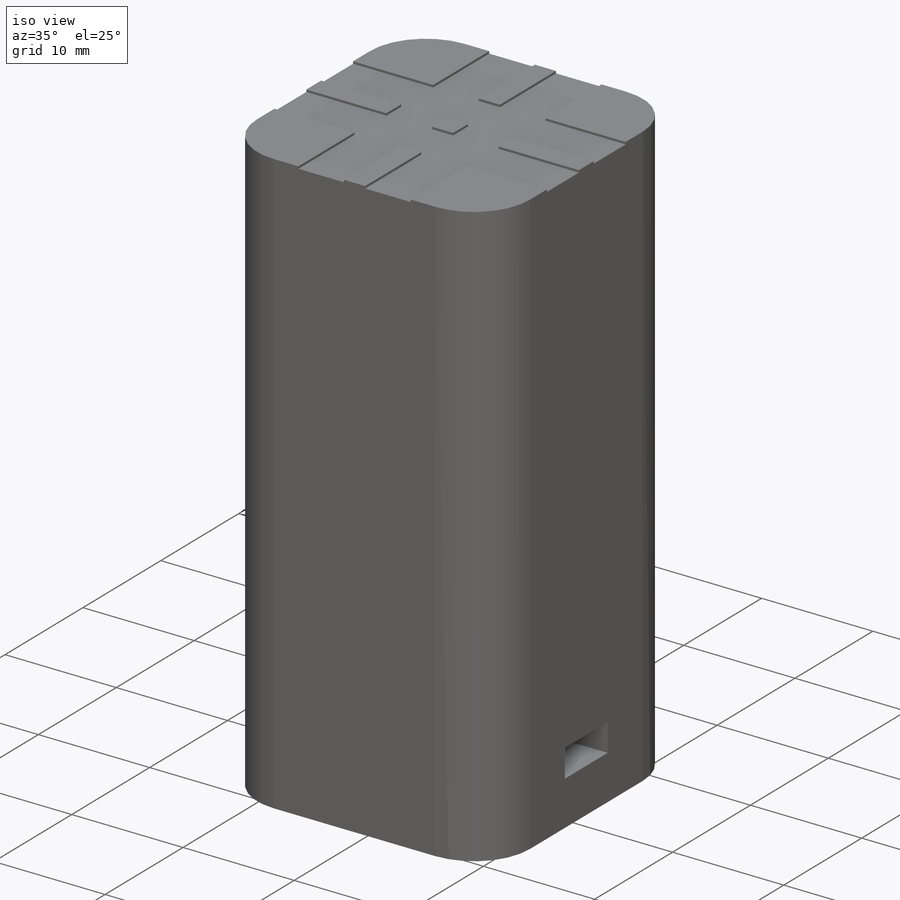
[diagram: iso view]
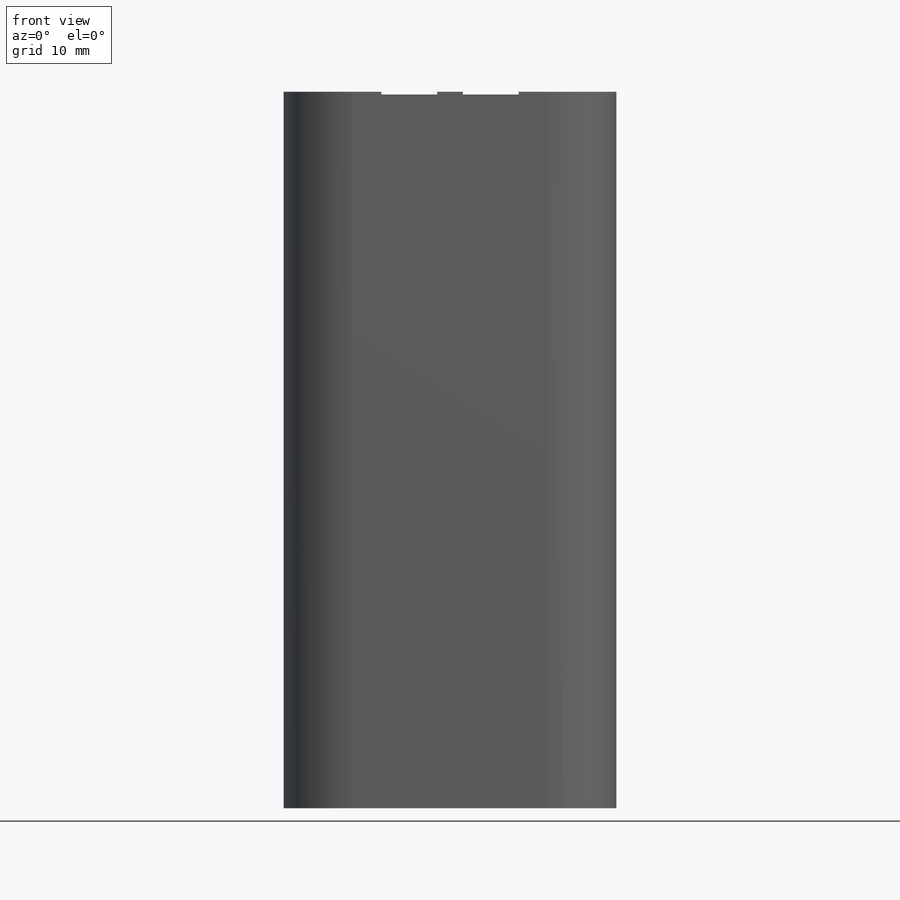
[diagram: front view]
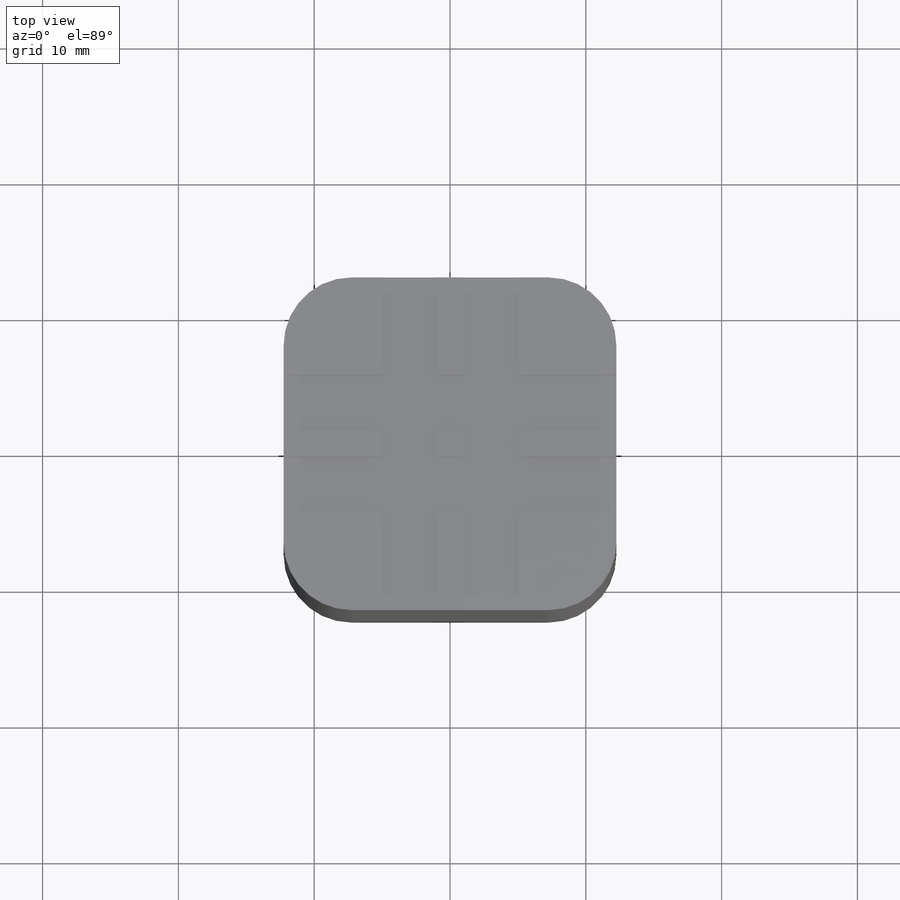
[diagram: top view]
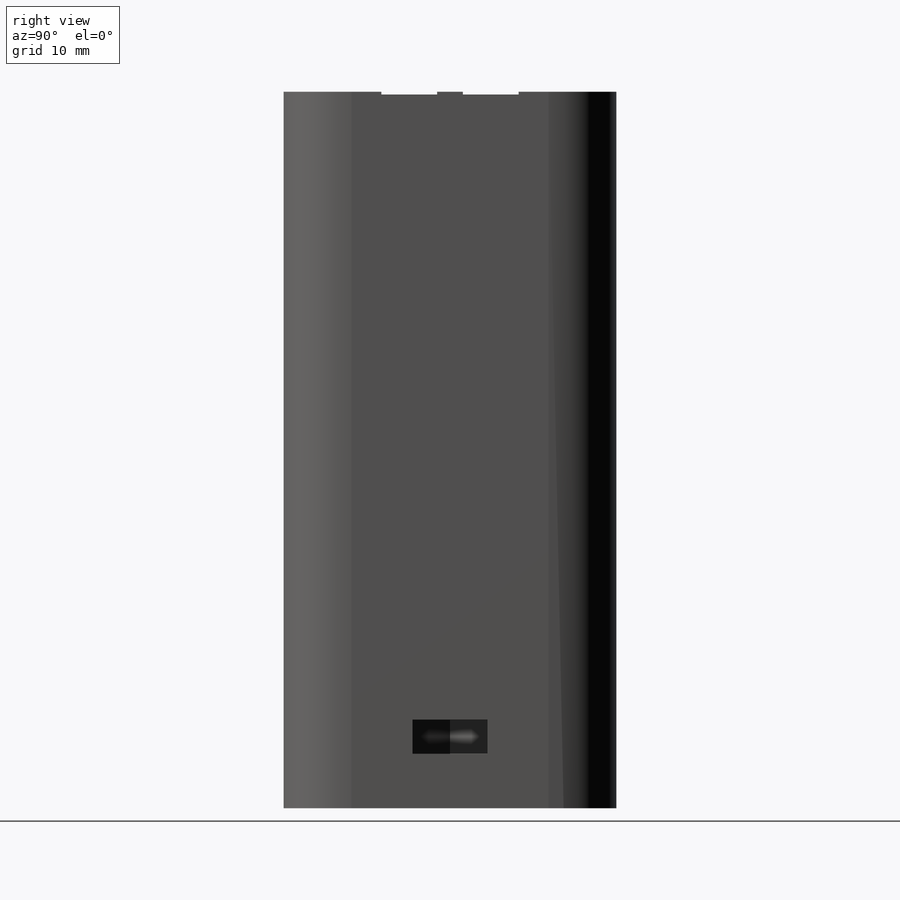
[diagram: right view]
SOLIDWORKS PART (.sldprt)
format: sldprt  version: not decoded by parser v0  size: 265,728 bytes
history: native  units: mm
features: sketch x5, cut_extrude x4, material x1, extrude x1, fillet x1 (+13 scaffold rows collapsed)
feature tree (25):
  scaffold x13  (default folders/planes/origin — collapsed)
  material  "Material <not specified>"
  sketch  "Sketch1"  dims[D1=24.5mm]
  extrude  "Boss-Extrude1"  Depth=52.75mm
  sketch  "Sketch3"  dims[D3=2.6mm D1=15.0mm D2=7.5mm]
  cut_extrude  "Cut-Extrude1"  Depth=10mm
  sketch  "Sketch4"  dims[D1=4.1mm D2=1.9mm D3=1.9mm]
  cut_extrude  "Cut-Extrude2"  Depth=0.2mm
  fillet  "Fillet1"  Radius=5mm
  sketch  "Sketch5"  dims[D1=5.5mm]
  cut_extrude  "Cut-Extrude3"  Depth=2.5mm
  sketch  "Sketch6"  dims[D1=5.0mm D2=45.0mm]
  cut_extrude  "Cut-Extrude4"  Depth=7mm
decode coverage: 11 of 11 modeling features carry decoded parameters
note: suppression state not decoded; provenance and decode notes live in map.json
